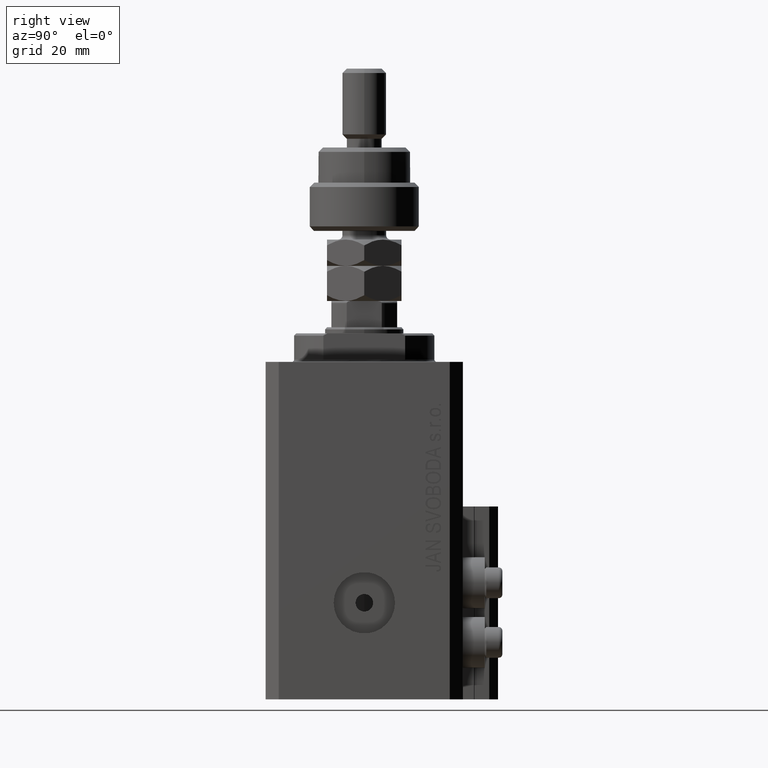
[diagram: clean part render]
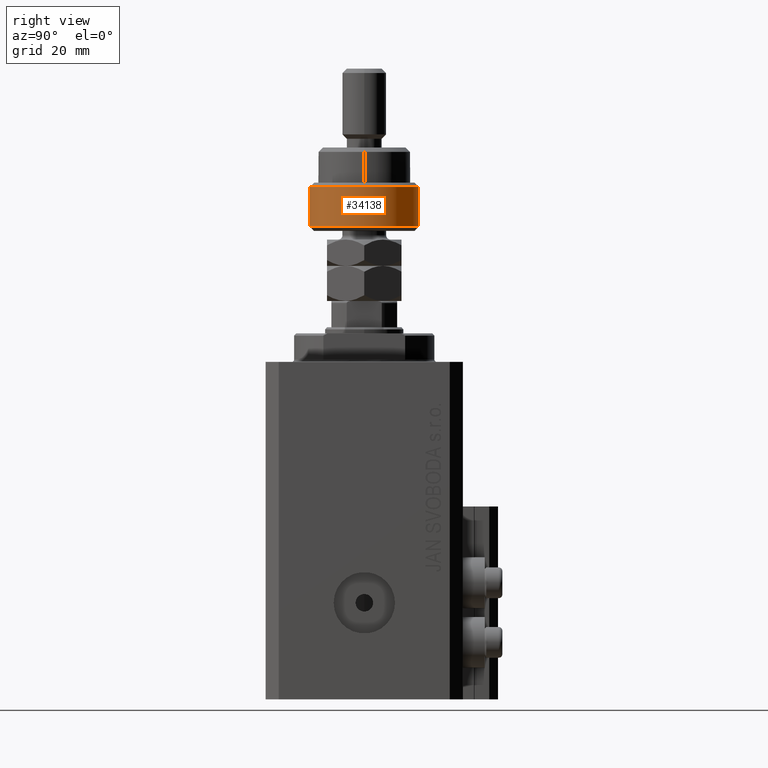
[diagram: same view with one face highlighted and labeled with its STEP entity id]
A machine part, right view. The second image highlights one B-rep face of the part: STEP entity #34138.
In plain terms, the highlighted cylindrical surface (partial cylindrical patch) has radius 12.5 mm, axis along (-0, -0, -1).
Its self-contained STEP definition (entity closure, byte-faithful):
#3499 = VERTEX_POINT ( 'NONE', #45318 ) ;
#4821 = DIRECTION ( 'NONE',  ( -1.000000000000000000, 0.000000000000000000, 0.000000000000000000 ) ) ;
#7202 = CARTESIAN_POINT ( 'NONE',  ( -11.22497216032182088, -5.500000000000007105, 10.00000000000000000 ) ) ;
#8012 = LINE ( 'NONE', #42938, #35342 ) ;
#8617 = CYLINDRICAL_SURFACE ( 'NONE', #36214, 12.50000000000000000 ) ;
#10441 = CARTESIAN_POINT ( 'NONE',  ( 0.000000000000000000, 0.000000000000000000, 0.9999999999999956701 ) ) ;
#11717 = CIRCLE ( 'NONE', #26278, 12.50000000000000000 ) ;
#14163 = CIRCLE ( 'NONE', #39219, 12.50000000000000000 ) ;
#19705 = VECTOR ( 'NONE', #25093, 1000.000000000000000 ) ;
#19912 = ORIENTED_EDGE ( 'NONE', *, *, #43008, .T. ) ;
#20013 = FACE_OUTER_BOUND ( 'NONE', #48705, .T. ) ;
#23472 = DIRECTION ( 'NONE',  ( -0.000000000000000000, -0.000000000000000000, -1.000000000000000000 ) ) ;
#24073 = CARTESIAN_POINT ( 'NONE',  ( 0.000000000000000000, 0.000000000000000000, 11.00000000000000000 ) ) ;
#25093 = DIRECTION ( 'NONE',  ( -0.000000000000000000, -0.000000000000000000, -1.000000000000000000 ) ) ;
#25783 = DIRECTION ( 'NONE',  ( -0.000000000000000000, -0.000000000000000000, 1.000000000000000000 ) ) ;
#25788 = ORIENTED_EDGE ( 'NONE', *, *, #30238, .T. ) ;
#25831 = CIRCLE ( 'NONE', #36353, 12.50000000000000000 ) ;
#26259 = VERTEX_POINT ( 'NONE', #39958 ) ;
#26278 = AXIS2_PLACEMENT_3D ( 'NONE', #10441, #45597, #33258 ) ;
#26629 = CARTESIAN_POINT ( 'NONE',  ( 12.50000000000000000, 0.000000000000000000, 0.9999999999999956701 ) ) ;
#27102 = VERTEX_POINT ( 'NONE', #26629 ) ;
#28070 = EDGE_CURVE ( 'NONE', #27102, #38897, #11717, .T. ) ;
#29028 = ORIENTED_EDGE ( 'NONE', *, *, #28070, .T. ) ;
#29328 = EDGE_CURVE ( 'NONE', #26259, #27102, #14163, .T. ) ;
#30238 = EDGE_CURVE ( 'NONE', #49010, #26259, #8012, .T. ) ;
#30934 = EDGE_CURVE ( 'NONE', #3499, #38897, #31966, .T. ) ;
#31966 = LINE ( 'NONE', #35751, #19705 ) ;
#33258 = DIRECTION ( 'NONE',  ( 1.000000000000000000, 0.000000000000000000, 0.000000000000000000 ) ) ;
#33641 = CARTESIAN_POINT ( 'NONE',  ( 0.000000000000000000, 0.000000000000000000, 0.9999999999999956701 ) ) ;
#34138 = ADVANCED_FACE ( 'NONE', ( #20013 ), #8617, .T. ) ;
#35342 = VECTOR ( 'NONE', #23472, 1000.000000000000000 ) ;
#35751 = CARTESIAN_POINT ( 'NONE',  ( -11.22497216032182443, 5.500000000000000000, 12.50000000000000000 ) ) ;
#36214 = AXIS2_PLACEMENT_3D ( 'NONE', #24073, #42535, #4821 ) ;
#36353 = AXIS2_PLACEMENT_3D ( 'NONE', #43363, #42870, #38829 ) ;
#38829 = DIRECTION ( 'NONE',  ( 1.000000000000000000, 0.000000000000000000, 0.000000000000000000 ) ) ;
#38897 = VERTEX_POINT ( 'NONE', #42512 ) ;
#39219 = AXIS2_PLACEMENT_3D ( 'NONE', #33641, #25783, #41215 ) ;
#39958 = CARTESIAN_POINT ( 'NONE',  ( -11.22497216032182088, -5.500000000000007105, 0.9999999999999956701 ) ) ;
#41095 = ORIENTED_EDGE ( 'NONE', *, *, #29328, .T. ) ;
#41215 = DIRECTION ( 'NONE',  ( 1.000000000000000000, 0.000000000000000000, 0.000000000000000000 ) ) ;
#42148 = ORIENTED_EDGE ( 'NONE', *, *, #30934, .F. ) ;
#42512 = CARTESIAN_POINT ( 'NONE',  ( -11.22497216032182443, 5.500000000000000000, 0.9999999999999956701 ) ) ;
#42535 = DIRECTION ( 'NONE',  ( -0.000000000000000000, -0.000000000000000000, -1.000000000000000000 ) ) ;
#42870 = DIRECTION ( 'NONE',  ( 0.000000000000000000, 0.000000000000000000, -1.000000000000000000 ) ) ;
#42938 = CARTESIAN_POINT ( 'NONE',  ( -11.22497216032182088, -5.500000000000007105, 12.50000000000000000 ) ) ;
#43008 = EDGE_CURVE ( 'NONE', #3499, #49010, #25831, .T. ) ;
#43363 = CARTESIAN_POINT ( 'NONE',  ( 0.000000000000000000, 0.000000000000000000, 10.00000000000000000 ) ) ;
#45318 = CARTESIAN_POINT ( 'NONE',  ( -11.22497216032182443, 5.500000000000000000, 10.00000000000000000 ) ) ;
#45597 = DIRECTION ( 'NONE',  ( -0.000000000000000000, -0.000000000000000000, 1.000000000000000000 ) ) ;
#48705 = EDGE_LOOP ( 'NONE', ( #42148, #19912, #25788, #41095, #29028 ) ) ;
#49010 = VERTEX_POINT ( 'NONE', #7202 ) ;